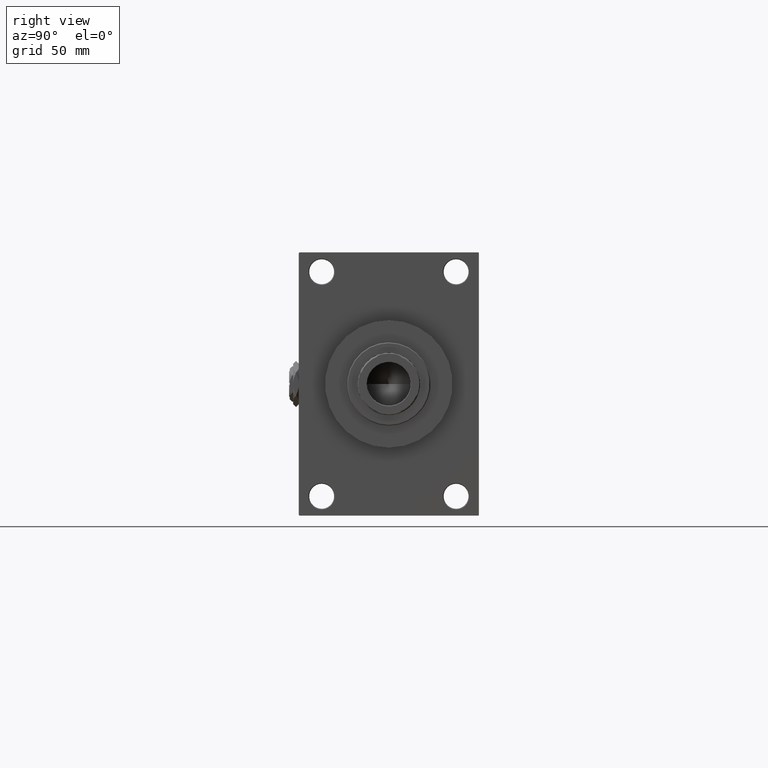
[diagram: clean part render]
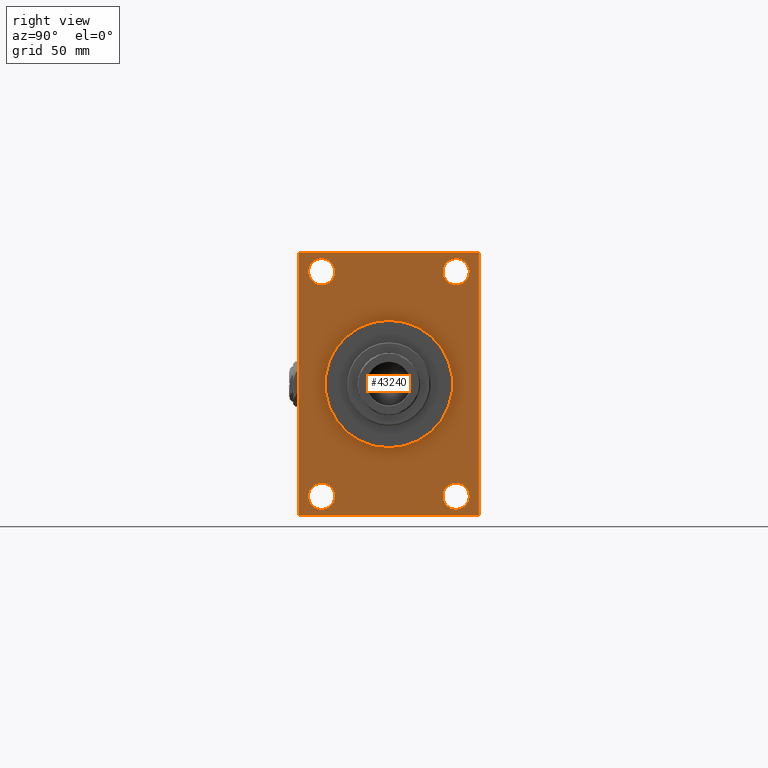
[diagram: same view with one face highlighted and labeled with its STEP entity id]
A machine part, right view. The second image highlights one B-rep face of the part: STEP entity #43240.
In plain terms, the highlighted planar face has unit normal (-1, 0, 0).
Its self-contained STEP definition (entity closure, byte-faithful):
#178 = CARTESIAN_POINT ( 'NONE',  ( 395.9999999999999432, -48.49999999999999289, -71.49999999999995737 ) ) ;
#477 = CARTESIAN_POINT ( 'NONE',  ( 395.9999999999999432, -64.50000000000001421, -95.00000000000002842 ) ) ;
#519 = EDGE_LOOP ( 'NONE', ( #27775, #43770 ) ) ;
#674 = ORIENTED_EDGE ( 'NONE', *, *, #47344, .T. ) ;
#804 = CARTESIAN_POINT ( 'NONE',  ( 395.9999999999999432, -65.00000000000001421, 94.99999999999997158 ) ) ;
#1224 = ORIENTED_EDGE ( 'NONE', *, *, #33461, .F. ) ;
#1725 = VERTEX_POINT ( 'NONE', #4794 ) ;
#1931 = ORIENTED_EDGE ( 'NONE', *, *, #13842, .T. ) ;
#2305 = DIRECTION ( 'NONE',  ( 0.000000000000000000, 0.000000000000000000, 1.000000000000000000 ) ) ;
#2987 = DIRECTION ( 'NONE',  ( 0.000000000000000000, -0.7071067811865474617, 0.7071067811865474617 ) ) ;
#3379 = DIRECTION ( 'NONE',  ( 1.000000000000000000, 0.000000000000000000, 0.000000000000000000 ) ) ;
#4073 = CARTESIAN_POINT ( 'NONE',  ( 395.9999999999999432, -48.50000000000000000, 81.00000000000000000 ) ) ;
#4085 = CARTESIAN_POINT ( 'NONE',  ( 395.9999999999999432, -64.50000000000002842, 94.99999999999997158 ) ) ;
#4191 = ORIENTED_EDGE ( 'NONE', *, *, #17112, .T. ) ;
#4517 = DIRECTION ( 'NONE',  ( 0.000000000000000000, 0.000000000000000000, 1.000000000000000000 ) ) ;
#4562 = VERTEX_POINT ( 'NONE', #16547 ) ;
#4708 = VERTEX_POINT ( 'NONE', #22549 ) ;
#4794 = CARTESIAN_POINT ( 'NONE',  ( 395.9999999999999432, 48.50000000000000711, -71.49999999999995737 ) ) ;
#4864 = DIRECTION ( 'NONE',  ( 1.000000000000000000, 0.000000000000000000, 0.000000000000000000 ) ) ;
#4968 = EDGE_CURVE ( 'NONE', #49146, #17190, #44032, .T. ) ;
#5047 = DIRECTION ( 'NONE',  ( 0.000000000000000000, 0.000000000000000000, 1.000000000000000000 ) ) ;
#5245 = DIRECTION ( 'NONE',  ( 0.000000000000000000, 7.304098846218135653E-17, -1.000000000000000000 ) ) ;
#5371 = AXIS2_PLACEMENT_3D ( 'NONE', #33529, #9886, #2305 ) ;
#5519 = CARTESIAN_POINT ( 'NONE',  ( 395.9999999999999432, -65.00000000000001421, 94.49999999999997158 ) ) ;
#5963 = EDGE_CURVE ( 'NONE', #46220, #9045, #7792, .T. ) ;
#6500 = ORIENTED_EDGE ( 'NONE', *, *, #49558, .T. ) ;
#6528 = LINE ( 'NONE', #37721, #41099 ) ;
#7174 = CARTESIAN_POINT ( 'NONE',  ( 395.9999999999999432, 0.000000000000000000, 0.000000000000000000 ) ) ;
#7185 = CIRCLE ( 'NONE', #36951, 9.500000000000063949 ) ;
#7228 = AXIS2_PLACEMENT_3D ( 'NONE', #44051, #47062, #5047 ) ;
#7792 = LINE ( 'NONE', #477, #31320 ) ;
#7971 = EDGE_CURVE ( 'NONE', #15877, #45549, #12147, .T. ) ;
#8505 = VERTEX_POINT ( 'NONE', #17646 ) ;
#9045 = VERTEX_POINT ( 'NONE', #17267 ) ;
#9886 = DIRECTION ( 'NONE',  ( -1.000000000000000000, 0.000000000000000000, -0.000000000000000000 ) ) ;
#10424 = CARTESIAN_POINT ( 'NONE',  ( 395.9999999999999432, -65.00000000000001421, -94.50000000000002842 ) ) ;
#10630 = VERTEX_POINT ( 'NONE', #11137 ) ;
#10724 = EDGE_LOOP ( 'NONE', ( #42715, #19667, #16027, #16904, #1224, #27865, #6500, #31634 ) ) ;
#10992 = ORIENTED_EDGE ( 'NONE', *, *, #47474, .T. ) ;
#11137 = CARTESIAN_POINT ( 'NONE',  ( 395.9999999999999432, 64.49999999999998579, -95.00000000000001421 ) ) ;
#12147 = CIRCLE ( 'NONE', #33014, 9.500000000000063949 ) ;
#13045 = CARTESIAN_POINT ( 'NONE',  ( 395.9999999999999432, 48.50000000000000711, -81.00000000000001421 ) ) ;
#13842 = EDGE_CURVE ( 'NONE', #45549, #15877, #47529, .T. ) ;
#14570 = VERTEX_POINT ( 'NONE', #48581 ) ;
#14631 = CARTESIAN_POINT ( 'NONE',  ( 395.9999999999999432, 64.99999999999997158, 94.99999999999997158 ) ) ;
#15007 = CIRCLE ( 'NONE', #42345, 9.500000000000063949 ) ;
#15114 = LINE ( 'NONE', #14631, #34617 ) ;
#15304 = AXIS2_PLACEMENT_3D ( 'NONE', #7174, #45197, #37887 ) ;
#15517 = DIRECTION ( 'NONE',  ( -1.000000000000000000, 0.000000000000000000, -0.000000000000000000 ) ) ;
#15877 = VERTEX_POINT ( 'NONE', #38085 ) ;
#16027 = ORIENTED_EDGE ( 'NONE', *, *, #28058, .F. ) ;
#16089 = CIRCLE ( 'NONE', #28112, 9.500000000000063949 ) ;
#16095 = CARTESIAN_POINT ( 'NONE',  ( 395.9999999999999432, 64.99999999999997158, 94.99999999999997158 ) ) ;
#16223 = LINE ( 'NONE', #34842, #16556 ) ;
#16547 = CARTESIAN_POINT ( 'NONE',  ( 395.9999999999999432, 64.50000000000002842, 94.99999999999997158 ) ) ;
#16556 = VECTOR ( 'NONE', #39343, 1000.000000000000000 ) ;
#16904 = ORIENTED_EDGE ( 'NONE', *, *, #33359, .T. ) ;
#17112 = EDGE_CURVE ( 'NONE', #14570, #42111, #31891, .T. ) ;
#17161 = EDGE_LOOP ( 'NONE', ( #22858, #48759 ) ) ;
#17190 = VERTEX_POINT ( 'NONE', #44844 ) ;
#17267 = CARTESIAN_POINT ( 'NONE',  ( 395.9999999999999432, -64.50000000000001421, -95.00000000000002842 ) ) ;
#17646 = CARTESIAN_POINT ( 'NONE',  ( 395.9999999999999432, 48.50000000000000711, -90.50000000000008527 ) ) ;
#18266 = FACE_BOUND ( 'NONE', #17161, .T. ) ;
#18321 = EDGE_LOOP ( 'NONE', ( #1931, #27717 ) ) ;
#18599 = AXIS2_PLACEMENT_3D ( 'NONE', #4073, #18701, #19440 ) ;
#18701 = DIRECTION ( 'NONE',  ( -1.000000000000000000, 0.000000000000000000, -0.000000000000000000 ) ) ;
#19133 = EDGE_CURVE ( 'NONE', #4708, #4562, #6528, .T. ) ;
#19440 = DIRECTION ( 'NONE',  ( 0.000000000000000000, 0.000000000000000000, 1.000000000000000000 ) ) ;
#19667 = ORIENTED_EDGE ( 'NONE', *, *, #5963, .T. ) ;
#20106 = CARTESIAN_POINT ( 'NONE',  ( 395.9999999999999432, 48.50000000000000711, 71.49999999999994316 ) ) ;
#20131 = VECTOR ( 'NONE', #38561, 1000.000000000000000 ) ;
#20885 = DIRECTION ( 'NONE',  ( -0.000000000000000000, -0.7071067811865378028, -0.7071067811865573427 ) ) ;
#21370 = CIRCLE ( 'NONE', #35847, 46.00000000000000000 ) ;
#21537 = CARTESIAN_POINT ( 'NONE',  ( 395.9999999999999432, -48.49999999999999289, -90.50000000000008527 ) ) ;
#21768 = CARTESIAN_POINT ( 'NONE',  ( 395.9999999999999432, -48.49999999999999289, -81.00000000000001421 ) ) ;
#22418 = VECTOR ( 'NONE', #20885, 1000.000000000000000 ) ;
#22511 = CIRCLE ( 'NONE', #7228, 9.500000000000063949 ) ;
#22518 = DIRECTION ( 'NONE',  ( 0.000000000000000000, 0.000000000000000000, -1.000000000000000000 ) ) ;
#22549 = CARTESIAN_POINT ( 'NONE',  ( 395.9999999999999432, 64.99999999999997158, 94.50000000000002842 ) ) ;
#22793 = FACE_BOUND ( 'NONE', #35470, .T. ) ;
#22858 = ORIENTED_EDGE ( 'NONE', *, *, #36449, .F. ) ;
#24006 = DIRECTION ( 'NONE',  ( 0.000000000000000000, 0.000000000000000000, -1.000000000000000000 ) ) ;
#24747 = CARTESIAN_POINT ( 'NONE',  ( 395.9999999999999432, 0.000000000000000000, 0.000000000000000000 ) ) ;
#24802 = DIRECTION ( 'NONE',  ( -1.000000000000000000, 0.000000000000000000, -0.000000000000000000 ) ) ;
#25806 = CARTESIAN_POINT ( 'NONE',  ( 395.9999999999999432, 0.000000000000000000, 0.000000000000000000 ) ) ;
#25949 = VERTEX_POINT ( 'NONE', #29459 ) ;
#26269 = EDGE_LOOP ( 'NONE', ( #10992, #4191 ) ) ;
#26316 = FACE_BOUND ( 'NONE', #519, .T. ) ;
#26436 = DIRECTION ( 'NONE',  ( 0.000000000000000000, 0.7071067811865474617, -0.7071067811865474617 ) ) ;
#27407 = LINE ( 'NONE', #35462, #39689 ) ;
#27430 = CARTESIAN_POINT ( 'NONE',  ( 395.9999999999999432, -48.50000000000000000, 81.00000000000000000 ) ) ;
#27717 = ORIENTED_EDGE ( 'NONE', *, *, #7971, .T. ) ;
#27775 = ORIENTED_EDGE ( 'NONE', *, *, #38381, .T. ) ;
#27865 = ORIENTED_EDGE ( 'NONE', *, *, #19133, .T. ) ;
#28058 = EDGE_CURVE ( 'NONE', #10630, #9045, #27407, .T. ) ;
#28112 = AXIS2_PLACEMENT_3D ( 'NONE', #35939, #43007, #39954 ) ;
#28798 = CIRCLE ( 'NONE', #40034, 46.00000000000000000 ) ;
#29340 = VERTEX_POINT ( 'NONE', #178 ) ;
#29459 = CARTESIAN_POINT ( 'NONE',  ( 395.9999999999999432, 64.99999999999998579, -94.50000000000002842 ) ) ;
#30208 = VECTOR ( 'NONE', #5245, 1000.000000000000000 ) ;
#31320 = VECTOR ( 'NONE', #26436, 1000.000000000000114 ) ;
#31634 = ORIENTED_EDGE ( 'NONE', *, *, #4968, .T. ) ;
#31891 = CIRCLE ( 'NONE', #5371, 9.500000000000063949 ) ;
#31896 = EDGE_CURVE ( 'NONE', #33157, #29340, #37430, .T. ) ;
#32084 = CARTESIAN_POINT ( 'NONE',  ( 395.9999999999999432, -48.50000000000000000, 71.49999999999994316 ) ) ;
#33014 = AXIS2_PLACEMENT_3D ( 'NONE', #27430, #43273, #4517 ) ;
#33157 = VERTEX_POINT ( 'NONE', #21537 ) ;
#33359 = EDGE_CURVE ( 'NONE', #10630, #25949, #16223, .T. ) ;
#33461 = EDGE_CURVE ( 'NONE', #4708, #25949, #46526, .T. ) ;
#33529 = CARTESIAN_POINT ( 'NONE',  ( 395.9999999999999432, 48.50000000000000711, 81.00000000000000000 ) ) ;
#34359 = FACE_OUTER_BOUND ( 'NONE', #10724, .T. ) ;
#34617 = VECTOR ( 'NONE', #37759, 1000.000000000000000 ) ;
#34842 = CARTESIAN_POINT ( 'NONE',  ( 395.9999999999999432, 64.99999999999998579, -94.50000000000002842 ) ) ;
#35462 = CARTESIAN_POINT ( 'NONE',  ( 395.9999999999999432, 64.99999999999998579, -95.00000000000001421 ) ) ;
#35470 = EDGE_LOOP ( 'NONE', ( #37203, #674 ) ) ;
#35847 = AXIS2_PLACEMENT_3D ( 'NONE', #25806, #3379, #22518 ) ;
#35939 = CARTESIAN_POINT ( 'NONE',  ( 395.9999999999999432, 48.50000000000000711, -81.00000000000001421 ) ) ;
#36449 = EDGE_CURVE ( 'NONE', #47446, #39575, #21370, .T. ) ;
#36606 = AXIS2_PLACEMENT_3D ( 'NONE', #38399, #15517, #41440 ) ;
#36951 = AXIS2_PLACEMENT_3D ( 'NONE', #21768, #24802, #44422 ) ;
#37203 = ORIENTED_EDGE ( 'NONE', *, *, #31896, .T. ) ;
#37430 = CIRCLE ( 'NONE', #36606, 9.500000000000063949 ) ;
#37721 = CARTESIAN_POINT ( 'NONE',  ( 395.9999999999999432, 64.50000000000002842, 94.99999999999997158 ) ) ;
#37759 = DIRECTION ( 'NONE',  ( 0.000000000000000000, -1.000000000000000000, 0.000000000000000000 ) ) ;
#37887 = DIRECTION ( 'NONE',  ( -0.000000000000000000, 0.000000000000000000, 1.000000000000000000 ) ) ;
#38085 = CARTESIAN_POINT ( 'NONE',  ( 395.9999999999999432, -48.50000000000000000, 90.50000000000007105 ) ) ;
#38381 = EDGE_CURVE ( 'NONE', #8505, #1725, #15007, .T. ) ;
#38399 = CARTESIAN_POINT ( 'NONE',  ( 395.9999999999999432, -48.49999999999999289, -81.00000000000001421 ) ) ;
#38561 = DIRECTION ( 'NONE',  ( 0.000000000000000000, 0.000000000000000000, -1.000000000000000000 ) ) ;
#39343 = DIRECTION ( 'NONE',  ( -0.000000000000000000, 0.7071067811865573427, 0.7071067811865378028 ) ) ;
#39575 = VERTEX_POINT ( 'NONE', #45299 ) ;
#39689 = VECTOR ( 'NONE', #42769, 1000.000000000000000 ) ;
#39954 = DIRECTION ( 'NONE',  ( 0.000000000000000000, 0.000000000000000000, 1.000000000000000000 ) ) ;
#40034 = AXIS2_PLACEMENT_3D ( 'NONE', #24747, #4864, #24006 ) ;
#41099 = VECTOR ( 'NONE', #2987, 1000.000000000000114 ) ;
#41173 = PLANE ( 'NONE',  #15304 ) ;
#41440 = DIRECTION ( 'NONE',  ( 0.000000000000000000, 0.000000000000000000, 1.000000000000000000 ) ) ;
#41736 = EDGE_CURVE ( 'NONE', #39575, #47446, #28798, .T. ) ;
#41911 = FACE_BOUND ( 'NONE', #26269, .T. ) ;
#42111 = VERTEX_POINT ( 'NONE', #20106 ) ;
#42345 = AXIS2_PLACEMENT_3D ( 'NONE', #13045, #43992, #44485 ) ;
#42715 = ORIENTED_EDGE ( 'NONE', *, *, #43691, .T. ) ;
#42769 = DIRECTION ( 'NONE',  ( 0.000000000000000000, -1.000000000000000000, -1.067522139062650425E-16 ) ) ;
#42867 = LINE ( 'NONE', #804, #20131 ) ;
#43007 = DIRECTION ( 'NONE',  ( -1.000000000000000000, 0.000000000000000000, -0.000000000000000000 ) ) ;
#43240 = ADVANCED_FACE ( 'NONE', ( #44944, #22793, #26316, #41911, #18266, #34359 ), #41173, .F. ) ;
#43273 = DIRECTION ( 'NONE',  ( -1.000000000000000000, 0.000000000000000000, -0.000000000000000000 ) ) ;
#43691 = EDGE_CURVE ( 'NONE', #17190, #46220, #42867, .T. ) ;
#43770 = ORIENTED_EDGE ( 'NONE', *, *, #47853, .T. ) ;
#43992 = DIRECTION ( 'NONE',  ( -1.000000000000000000, 0.000000000000000000, -0.000000000000000000 ) ) ;
#44032 = LINE ( 'NONE', #5519, #22418 ) ;
#44051 = CARTESIAN_POINT ( 'NONE',  ( 395.9999999999999432, 48.50000000000000711, 81.00000000000000000 ) ) ;
#44302 = CARTESIAN_POINT ( 'NONE',  ( 395.9999999999999432, 0.000000000000000000, 46.00000000000000000 ) ) ;
#44422 = DIRECTION ( 'NONE',  ( 0.000000000000000000, 0.000000000000000000, 1.000000000000000000 ) ) ;
#44485 = DIRECTION ( 'NONE',  ( 0.000000000000000000, 0.000000000000000000, 1.000000000000000000 ) ) ;
#44844 = CARTESIAN_POINT ( 'NONE',  ( 395.9999999999999432, -65.00000000000001421, 94.49999999999997158 ) ) ;
#44944 = FACE_BOUND ( 'NONE', #18321, .T. ) ;
#45197 = DIRECTION ( 'NONE',  ( -1.000000000000000000, 0.000000000000000000, -0.000000000000000000 ) ) ;
#45299 = CARTESIAN_POINT ( 'NONE',  ( 395.9999999999999432, 5.633375276077824704E-15, -46.00000000000000000 ) ) ;
#45549 = VERTEX_POINT ( 'NONE', #32084 ) ;
#46220 = VERTEX_POINT ( 'NONE', #10424 ) ;
#46526 = LINE ( 'NONE', #16095, #30208 ) ;
#47062 = DIRECTION ( 'NONE',  ( -1.000000000000000000, 0.000000000000000000, -0.000000000000000000 ) ) ;
#47344 = EDGE_CURVE ( 'NONE', #29340, #33157, #7185, .T. ) ;
#47446 = VERTEX_POINT ( 'NONE', #44302 ) ;
#47474 = EDGE_CURVE ( 'NONE', #42111, #14570, #22511, .T. ) ;
#47529 = CIRCLE ( 'NONE', #18599, 9.500000000000063949 ) ;
#47853 = EDGE_CURVE ( 'NONE', #1725, #8505, #16089, .T. ) ;
#48581 = CARTESIAN_POINT ( 'NONE',  ( 395.9999999999999432, 48.50000000000000711, 90.50000000000007105 ) ) ;
#48759 = ORIENTED_EDGE ( 'NONE', *, *, #41736, .F. ) ;
#49146 = VERTEX_POINT ( 'NONE', #4085 ) ;
#49558 = EDGE_CURVE ( 'NONE', #4562, #49146, #15114, .T. ) ;